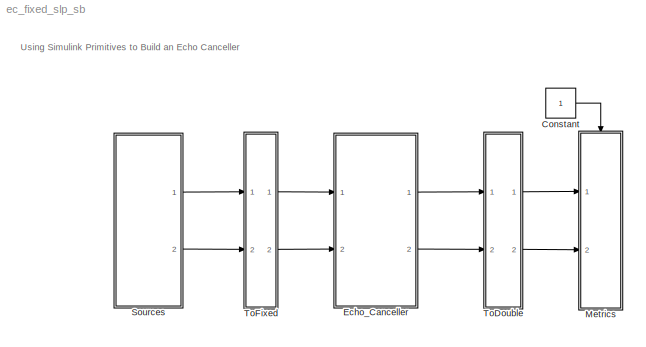
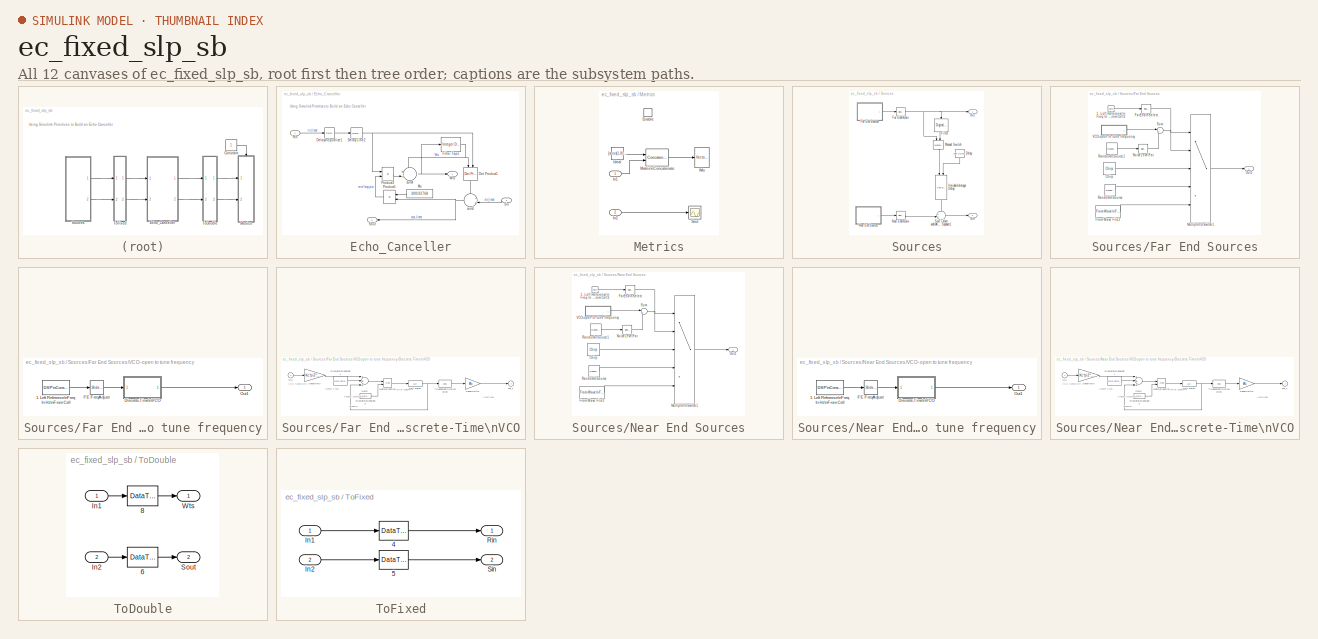
[diagram: thumbnail index - all 12 canvases of the model, root first then tree order]
MODEL ec_fixed_slp_sb
KIND model
CONFIG PreLoadFcn = ec_fixed_setup;
CONFIG StartFcn = tic;
CONFIG StopFcn = toc;
BLOCK [Constant] Constant
  SID = 1
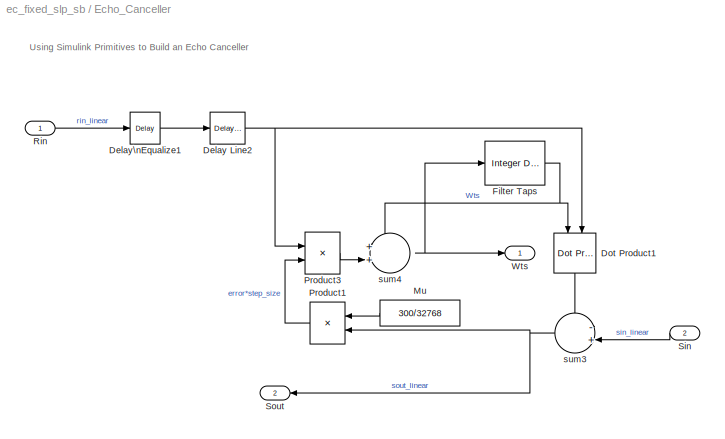
BLOCK [SubSystem] Echo_Canceller
  Ports = [2, 2]
  RequestExecContextInheritance = off
  SID = 2
BLOCK [Reference] Echo_Canceller/Delay Line2  REF=dspbuff3/Delay Line
  Ports = [1, 1]
  SID = 6
  SourceBlock = dspbuff3/Delay Line
  SourceProductBaseCode = DS
  SourceProductName = DSP System Toolbox
  SourceType = Delay Line
  directfeed = on
  ic = 0
  siz = ec_length
BLOCK [Reference] Echo_Canceller/Delay\nEqualize1  REF=dspsigops/Delay
  Ports = [1, 1]
  SID = 5
  SourceBlock = dspsigops/Delay
  SourceProductBaseCode = DS
  SourceProductName = DSP System Toolbox
  SourceType = Delay
  delay = spkr_to_mic_delay +sm_length/2 - ec_length/2
  dif_ic_for_ch = off
  dif_ic_for_dly = off
  dly_unit = Samples
  ic = 0
  ic_detail = off
  reset_popup = None
BLOCK [Reference] Echo_Canceller/Dot Product1  REF=simulink/Math\nOperations/Dot Product
  DoSatur = off
  InputSameDT = off
  LockScale = off
  OutDataType = fixdt(1,16,15)
  OutDataTypeStr = fixdt(1,16,15)
  OutScaling = []
  OutputDataTypeScalingMode = Specify via dialog
  Ports = [2, 1]
  RndMeth = Nearest
  SID = 7
  SourceBlock = simulink/Math\nOperations/Dot Product
  SourceProductBaseCode = SL
  SourceProductName = Simulink
  SourceType = Dot Product
BLOCK [Reference] Echo_Canceller/Filter Taps  REF=dspobslib/Integer Delay
  Ports = [1, 1]
  SID = 8
  SourceBlock = dspobslib/Integer Delay
  SourceProductBaseCode = DS
  SourceProductName = DSP System Toolbox
  SourceType = Integer Delay
  delay = ec_length
  ic = 0
  reset_popup = None
BLOCK [Constant] Echo_Canceller/Mu
  OutDataTypeStr = fixdt(1,16,15)
  SID = 9
  SampleTime = pic_frame_size/Fs
  Value = 300/32768
BLOCK [Product] Echo_Canceller/Product1
  InputSameDT = off
  OutDataTypeStr = fixdt(1,16,15)
  Ports = [2, 1]
  RndMeth = Nearest
  SID = 10
BLOCK [Product] Echo_Canceller/Product3
  InputSameDT = off
  OutDataTypeStr = fixdt(1,16,15)
  Ports = [2, 1]
  RndMeth = Nearest
  SID = 11
BLOCK [Inport] Echo_Canceller/Rin
  IconDisplay = Port number
  SID = 3
BLOCK [Inport] Echo_Canceller/Sin
  IconDisplay = Port number
  Port = 2
  SID = 4
BLOCK [Outport] Echo_Canceller/Sout
  IconDisplay = Port number
  Port = 2
  SID = 15
BLOCK [Outport] Echo_Canceller/Wts
  IconDisplay = Port number
  SID = 14
BLOCK [Sum] Echo_Canceller/sum3
  IconShape = round
  InputSameDT = off
  Inputs = -+|
  OutDataTypeStr = fixdt(1,16,14)
  Ports = [2, 1]
  RndMeth = Nearest
  SID = 12
BLOCK [Sum] Echo_Canceller/sum4
  IconShape = round
  InputSameDT = off
  Inputs = ++|
  OutDataTypeStr = fixdt(1,16,15)
  Ports = [2, 1]
  RndMeth = Nearest
  SID = 13
BLOCK [SubSystem] Metrics
  Ports = [2, 0, 1]
  RequestExecContextInheritance = off
  SID = 17
BLOCK [EnablePort] Metrics/Enable
  Ports = []
  SID = 20
BLOCK [Constant] Metrics/Ideal
  SID = 21
  Value = [zeros(1,8) spkr_to_mic_filter zeros(1,8)]
BLOCK [Inport] Metrics/In1
  IconDisplay = Port number
  SID = 18
BLOCK [Inport] Metrics/In2
  IconDisplay = Port number
  Port = 2
  SID = 19
BLOCK [Concatenate] Metrics/Matrix\nConcatenate
  ConcatenateDimension = 2
  Mode = Multidimensional array
  Ports = [2, 1]
  SID = 22
BLOCK [Scope] Metrics/Sout
  Floating = off
  NumInputPorts = 1
  Ports = [1]
  SID = 23
  ScopeSpecificationString = C++SS(StrPVP('Location','[620, 344, 964, 583]'),StrPVP('Open','off'),MxPVP('AxesTitles',54,'struct(''axes1'',''%<SignalLabel>'')'),StrPVP('TimeRange','10              '),StrPVP('YMin','-0.35'),StrPVP('YMax','0.35'),StrPVP('DataFormat','StructureWithTime'),StrPVP('BlockParamSampleTime','0'),StrPVP('LimitDataPoints','on'),StrPVP('Decimation','1'),StrPVP('BlockParamSampleInput','off'))
BLOCK [Reference] Metrics/Wts  REF=dspsnks4/Vector\nScope
  AxisGrid = on
  AxisLegend = off
  AxisProperties = off
  AxisZoom = off
  DisplayProperties = off
  Domain = Time
  FigPos = [616 915 341 237]
  FrameNumber = on
  HorizSpan = 1
  InheritXIncr = on
  LineColors = [1 0 0]|[0 1 0]
  LineProperties = off
  Memory = off
  OpenScopeAtSimStart = on
  OpenScopeImmediately = off
  Ports = [1]
  SID = 24
  ScopeProperties = on
  ShowPortLabels = off
  SourceBlock = dspsnks4/Vector\nScope
  SourceProductBaseCode = DS
  SourceProductName = DSP System Toolbox
  SourceType = Vector Scope
  XIncr = 1
  XLabel = Time
  XLimit = Auto
  XMax = 1
  XMin = 0
  XRange = [0...Fs/2]
  XStart = 0
  XUnits = Hertz
  YLabel = Amplitude
  YMax = 0.335546875
  YMin = -0.04794921875
  YUnits = dB
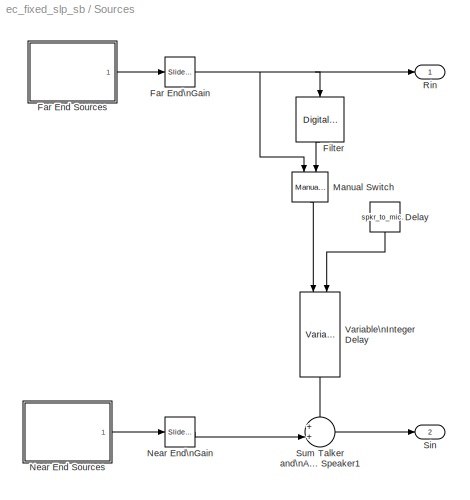
BLOCK [SubSystem] Sources
  AncestorBlock = ec_lib/Sources
  Ports = [0, 2]
  RequestExecContextInheritance = off
  SID = 25
BLOCK [Constant] Sources/Delay
  SID = 25:1
  SampleTime = 1/Fs
  Value = spkr_to_mic_delay
BLOCK [SubSystem] Sources/Far End Sources
  Ports = [0, 1]
  RequestExecContextInheritance = off
  SID = 25:3
BLOCK [Reference] Sources/Far End Sources/1. Left Reference\nFreq In Hz\nFrom Cell3  REF=dspsrcs4/DSP\nConstant
  FramebasedOutput = -inf
  FunctionWithSeparateData = off
  InterpretAs1D = -inf
  Ports = [0, 1]
  RTWMemSecDataConstants = Inherit from model
  RTWMemSecDataInternal = Inherit from model
  RTWMemSecDataParameters = Inherit from model
  RTWMemSecFuncExecute = Inherit from model
  RTWMemSecFuncInitTerm = Inherit from model
  SID = 25:4
  SampleMode = Discrete
  ShowPortLabels = FromPortIcon
  SourceBlock = dspsrcs4/DSP\nConstant
  SourceProductBaseCode = DS
  SourceProductName = DSP System Toolbox
  SourceType = DSP Constant
  SystemSampleTime = -1
  Ts = -inf
  Value = 1
  additionalParams = on
  allowOverrides = on
  continuousOutput = Sample-based
  dataType = double
  discreteOutput = Sample-based
  fracBitsMode = Best precision
  framePeriod = 2
  isSigned = on
  numFracBits = 15
  sampTime = 1/Fs
  udDataType = sfix(16)
  wordLen = 16
BLOCK [Reference] Sources/Far End Sources/Chirp  REF=dspsrcs4/Chirp
  Ports = [0, 1]
  SID = 25:5
  SourceBlock = dspsrcs4/Chirp
  SourceProductBaseCode = DS
  SourceProductName = DSP System Toolbox
  SourceType = Chirp
  Ts = 1/Fs
  Tsweep = pic_frame_size/Fs
  datatype = Double
  f0 = 100
  f1 = 4000
  mode = Unidirectional
  phase = 0
  spf = 1
  sweep = Linear
  t1 = pic_frame_size/Fs
BLOCK [Reference] Sources/Far End Sources/FarEnd\nSelect  REF=simulink/Math\nOperations/Slider\nGain
  FunctionWithSeparateData = off
  Ports = [1, 1]
  RTWMemSecDataConstants = Inherit from model
  RTWMemSecDataInternal = Inherit from model
  RTWMemSecDataParameters = Inherit from model
  RTWMemSecFuncExecute = Inherit from model
  RTWMemSecFuncInitTerm = Inherit from model
  SID = 25:6
  ShowPortLabels = FromPortIcon
  SourceBlock = simulink/Math\nOperations/Slider\nGain
  SourceProductBaseCode = SL
  SourceProductName = Simulink
  SourceType = Slider Gain
  SystemSampleTime = -1
  gain = 3
  high = 10
  low = 0
BLOCK [Reference] Sources/Far End Sources/From Wave File2  REF=dspwin32/From Wave\nFile
  FileName = far_end.wav
  MinBufSize = 80
  Ports = [0, 1]
  SID = 25:7
  SamplesPerFrame = 1
  SourceBlock = dspwin32/From Wave\nFile
  SourceProductBaseCode = DS
  SourceProductName = DSP System Toolbox
  SourceType = From Wave File
  bLoop = on
  dType = double
  firstSampleOutput = off
  lastSampleOutput = off
  restartMode = immediately after last sample
  timesToPlay = inf
BLOCK [MultiPortSwitch] Sources/Far End Sources/Multiport\nSwitch1
  InputSameDT = off
  Inputs = 4
  Ports = [5, 1]
  SID = 25:8
  SampleTime = 1/Fs
  SaturateOnIntegerOverflow = off
BLOCK [Reference] Sources/Far End Sources/NoiseLevelFar  REF=simulink/Math\nOperations/Slider\nGain
  FunctionWithSeparateData = off
  Ports = [1, 1]
  RTWMemSecDataConstants = Inherit from model
  RTWMemSecDataInternal = Inherit from model
  RTWMemSecDataParameters = Inherit from model
  RTWMemSecFuncExecute = Inherit from model
  RTWMemSecFuncInitTerm = Inherit from model
  SID = 25:9
  ShowPortLabels = FromPortIcon
  SourceBlock = simulink/Math\nOperations/Slider\nGain
  SourceProductBaseCode = SL
  SourceProductName = Simulink
  SourceType = Slider Gain
  SystemSampleTime = -1
  gain = 0.01
  high = 1
  low = 0
BLOCK [Outport] Sources/Far End Sources/Out1
  IconDisplay = Port number
  SID = 25:33
BLOCK [Reference] Sources/Far End Sources/Random\nSource  REF=dspsrcs4/Random\nSource
  CltLength = 12
  DataType = Double
  IsInherit = off
  MaxVal = 1
  MeanVal = 0
  MinVal = 0
  NormMethod = Ziggurat
  OutComplex = Real
  Ports = [0, 1]
  RepMode = Repeatable
  SID = 25:10
  SampFrame = 1
  SampMode = Discrete
  SampTime = 1/Fs
  SourceBlock = dspsrcs4/Random\nSource
  SourceProductBaseCode = DS
  SourceProductName = DSP System Toolbox
  SourceType = Random Source
  SrcType = Gaussian
  UserData = DataTag0
  UserDataPersistent = on
  VarVal = 1
  rawSeed = 1
BLOCK [Reference] Sources/Far End Sources/Random\nSource1  REF=dspsrcs4/Random\nSource
  CltLength = 12
  DataType = Double
  IsInherit = off
  MaxVal = 1
  MeanVal = 0
  MinVal = 0
  NormMethod = Ziggurat
  OutComplex = Real
  Ports = [0, 1]
  RepMode = Not repeatable
  SID = 25:11
  SampFrame = 1
  SampMode = Discrete
  SampTime = 1/Fs
  SourceBlock = dspsrcs4/Random\nSource
  SourceProductBaseCode = DS
  SourceProductName = DSP System Toolbox
  SourceType = Random Source
  SrcType = Gaussian
  UserData = DataTag1
  UserDataPersistent = on
  VarVal = 1
  rawSeed = 1
BLOCK [Sum] Sources/Far End Sources/Sum
  IconShape = round
  InputSameDT = off
  Inputs = |++
  OutDataTypeStr = Inherit: Inherit via internal rule
  Ports = [2, 1]
  SID = 25:12
  SaturateOnIntegerOverflow = off
BLOCK [SubSystem] Sources/Far End Sources/VCO-open to tune frequency
  Ports = [0, 1]
  RequestExecContextInheritance = off
  SID = 25:13
BLOCK [Reference] Sources/Far End Sources/VCO-open to tune frequency/1. Left Reference\nFreq In Hz\nFrom Cell  REF=dspsrcs4/DSP\nConstant
  FramebasedOutput = -inf
  FunctionWithSeparateData = off
  InterpretAs1D = -inf
  Ports = [0, 1]
  RTWMemSecDataConstants = Inherit from model
  RTWMemSecDataInternal = Inherit from model
  RTWMemSecDataParameters = Inherit from model
  RTWMemSecFuncExecute = Inherit from model
  RTWMemSecFuncInitTerm = Inherit from model
  SID = 25:14
  SampleMode = Discrete
  ShowPortLabels = FromPortIcon
  SourceBlock = dspsrcs4/DSP\nConstant
  SourceProductBaseCode = DS
  SourceProductName = DSP System Toolbox
  SourceType = DSP Constant
  SystemSampleTime = -1
  Ts = -inf
  Value = 1000
  additionalParams = on
  allowOverrides = on
  continuousOutput = Sample-based
  dataType = double
  discreteOutput = Sample-based
  fracBitsMode = Best precision
  framePeriod = 2
  isSigned = on
  numFracBits = 15
  sampTime = 1/Fs
  udDataType = sfix(16)
  wordLen = 16
BLOCK [SubSystem] Sources/Far End Sources/VCO-open to tune frequency/Discrete-Time\nVCO
  Ports = [1, 1]
  RequestExecContextInheritance = off
  SID = 25:15
BLOCK [Reference] Sources/Far End Sources/VCO-open to tune frequency/Discrete-Time\nVCO/Discrete\nConstant1  REF=dspsrcs4/DSP\nConstant
  FramebasedOutput = off
  FunctionWithSeparateData = off
  InterpretAs1D = on
  Ports = [0, 1]
  RTWMemSecDataConstants = Inherit from model
  RTWMemSecDataInternal = Inherit from model
  RTWMemSecDataParameters = Inherit from model
  RTWMemSecFuncExecute = Inherit from model
  RTWMemSecFuncInitTerm = Inherit from model
  SID = 25:17
  SampleMode = Discrete
  ShowPortLabels = FromPortIcon
  SourceBlock = dspsrcs4/DSP\nConstant
  SourceProductBaseCode = DS
  SourceProductName = DSP System Toolbox
  SourceType = DSP Constant
  SystemSampleTime = -1
  Ts = 1/8000
  Value = Fc*pi2*ts
  additionalParams = on
  allowOverrides = on
  continuousOutput = Sample-based
  dataType = Inherit via back propagation
  discreteOutput = Sample-based (interpret vectors as 1-D)
  fracBitsMode = Best precision
  framePeriod = 1/8000
  isSigned = on
  numFracBits = 15
  sampTime = 1/8000
  udDataType = sfix(16)
  wordLen = 16
BLOCK [Reference] Sources/Far End Sources/VCO-open to tune frequency/Discrete-Time\nVCO/Discrete\nConstant2  REF=dspsrcs4/DSP\nConstant
  FramebasedOutput = off
  FunctionWithSeparateData = off
  InterpretAs1D = on
  Ports = [0, 1]
  RTWMemSecDataConstants = Inherit from model
  RTWMemSecDataInternal = Inherit from model
  RTWMemSecDataParameters = Inherit from model
  RTWMemSecFuncExecute = Inherit from model
  RTWMemSecFuncInitTerm = Inherit from model
  SID = 25:18
  SampleMode = Discrete
  ShowPortLabels = FromPortIcon
  SourceBlock = dspsrcs4/DSP\nConstant
  SourceProductBaseCode = DS
  SourceProductName = DSP System Toolbox
  SourceType = DSP Constant
  SystemSampleTime = -1
  Ts = 1/8000
  Value = pi2
  additionalParams = on
  allowOverrides = on
  continuousOutput = Sample-based
  dataType = Inherit via back propagation
  discreteOutput = Sample-based (interpret vectors as 1-D)
  fracBitsMode = Best precision
  framePeriod = 1/8000
  isSigned = on
  numFracBits = 15
  sampTime = 1/8000
  udDataType = sfix(16)
  wordLen = 16
BLOCK [Math] Sources/Far End Sources/VCO-open to tune frequency/Discrete-Time\nVCO/Math\nFunction
  Operator = mod
  Ports = [2, 1]
  SID = 25:19
BLOCK [Gain] Sources/Far End Sources/VCO-open to tune frequency/Discrete-Time\nVCO/Sensitivity
  Gain = Kc*pi2*ts
  SID = 25:20
BLOCK [Gain] Sources/Far End Sources/VCO-open to tune frequency/Discrete-Time\nVCO/Sensitivity2
  Gain = Ac
  SID = 25:21
BLOCK [Sum] Sources/Far End Sources/VCO-open to tune frequency/Discrete-Time\nVCO/Sum1
  Inputs = +++
  Ports = [3, 1]
  SID = 25:22
BLOCK [Trigonometry] Sources/Far End Sources/VCO-open to tune frequency/Discrete-Time\nVCO/Trigonometric\nFunction
  Operator = cos
  Ports = [1, 1]
  SID = 25:23
BLOCK [UnitDelay] Sources/Far End Sources/VCO-open to tune frequency/Discrete-Time\nVCO/Unit Delay
  InitialCondition = Ph
  SID = 25:24
  SampleTime = ts
BLOCK [Inport] Sources/Far End Sources/VCO-open to tune frequency/Discrete-Time\nVCO/in_1
  IconDisplay = Port number
  SID = 25:16
BLOCK [Outport] Sources/Far End Sources/VCO-open to tune frequency/Discrete-Time\nVCO/out_1
  IconDisplay = Port number
  InitialOutput = 0
  SID = 25:25
BLOCK [Reference] Sources/Far End Sources/VCO-open to tune frequency/FE FreqAdjust  REF=simulink/Math\nOperations/Slider\nGain
  FunctionWithSeparateData = off
  Ports = [1, 1]
  RTWMemSecDataConstants = Inherit from model
  RTWMemSecDataInternal = Inherit from model
  RTWMemSecDataParameters = Inherit from model
  RTWMemSecFuncExecute = Inherit from model
  RTWMemSecFuncInitTerm = Inherit from model
  SID = 25:31
  ShowPortLabels = FromPortIcon
  SourceBlock = simulink/Math\nOperations/Slider\nGain
  SourceProductBaseCode = SL
  SourceProductName = Simulink
  SourceType = Slider Gain
  SystemSampleTime = -1
  gain = 1.1
  high = 5
  low = 0
BLOCK [Outport] Sources/Far End Sources/VCO-open to tune frequency/Out1
  IconDisplay = Port number
  SID = 25:32
BLOCK [Reference] Sources/Far End\nGain  REF=simulink/Math\nOperations/Slider\nGain
  FunctionWithSeparateData = off
  Ports = [1, 1]
  RTWMemSecDataConstants = Inherit from model
  RTWMemSecDataInternal = Inherit from model
  RTWMemSecDataParameters = Inherit from model
  RTWMemSecFuncExecute = Inherit from model
  RTWMemSecFuncInitTerm = Inherit from model
  SID = 25:2
  ShowPortLabels = FromPortIcon
  SourceBlock = simulink/Math\nOperations/Slider\nGain
  SourceProductBaseCode = SL
  SourceProductName = Simulink
  SourceType = Slider Gain
  SystemSampleTime = -1
  gain = 0.2
  high = 10
  low = 0
BLOCK [Reference] Sources/Filter  REF=dsparch4/Digital Filter
  AllPoleFiltStruct = Direct form
  BiQuadCoeffs = [1 0.3 0.4 1 0.1 0.2]
  CoeffSource = Specify via dialog
  DenCoeffs = [1 0.1]
  FIRFiltStruct = Direct form
  FiltPerSampPopup = One filter per frame
  FilterSource = Specify via dialog
  IC = 0
  ICden = 0
  ICnum = 0
  IIRFiltStruct = Direct form II transposed
  LatticeCoeffs = [0.2 0.4]
  LockScale = off
  NumCoeffs = spkr_to_mic_filter
  Ports = [1, 1]
  SID = 25:34
  ScaleValues = 1
  SourceBlock = dsparch4/Digital Filter
  SourceProductBaseCode = DS
  SourceProductName = DSP System Toolbox
  SourceType = Digital Filter
  Tag = BlockMethodSubSystem
  TypePopup = FIR (all zeros)
  accumFracLength = 30
  accumMode = Same as product output
  accumWordLength = 32
  additionalParams = off
  allowOverrides = on
  denIgnore = on
  dfiltObjectName = dfilt.dffir([1 2 1])
  firstCoeffFracLength = 15
  firstCoeffMode = Same word length as input
  firstCoeffWordLength = 16
  memoryFracLength = 15
  memoryMode = Same as accumulator
  memoryWordLength = 16
  multiplicandFracLength = 30
  multiplicandMode = Same as output
  multiplicandWordLength = 32
  outputFracLength = 15
  outputMode = Same as accumulator
  outputWordLength = 16
  overflowMode = off
  prodOutputFracLength = 30
  prodOutputMode = Same as input
  prodOutputWordLength = 32
  roundingMode = Floor
  scaleValueFracLength = 14
  secondCoeffFracLength = 15
  secondCoeffMode = Same as numerator
  secondCoeffWordLength = 16
  showAcc = off
  showCoeff = off
  showMem = off
  showMpy = off
  showOut = off
  stageIOMode = Same as input
  stageIOWordLength = 16
  stageInFracLength = 15
  stageOutFracLength = 15
  tapSumFracLength = 30
  tapSumMode = Same as input
  tapSumWordLength = 32
  thirdCoeffFracLength = 15
  thirdCoeffMode = Same as input
  thirdCoeffWordLength = 16
BLOCK [Reference] Sources/Manual Switch  REF=simulink/Signal\nRouting/Manual Switch
  FunctionWithSeparateData = off
  Ports = [2, 1]
  RTWMemSecDataConstants = Inherit from model
  RTWMemSecDataInternal = Inherit from model
  RTWMemSecDataParameters = Inherit from model
  RTWMemSecFuncExecute = Inherit from model
  RTWMemSecFuncInitTerm = Inherit from model
  SID = 25:35
  ShowPortLabels = FromPortIcon
  SourceBlock = simulink/Signal\nRouting/Manual Switch
  SourceProductBaseCode = SL
  SourceProductName = Simulink
  SourceType = Manual Switch
  SystemSampleTime = -1
  action = 0
  sw = 0
  varsize = off
BLOCK [SubSystem] Sources/Near End Sources
  Ports = [0, 1]
  RequestExecContextInheritance = off
  SID = 25:37
BLOCK [Reference] Sources/Near End Sources/1. Left Reference\nFreq In Hz\nFrom Cell3  REF=dspsrcs4/DSP\nConstant
  FramebasedOutput = -inf
  FunctionWithSeparateData = off
  InterpretAs1D = -inf
  Ports = [0, 1]
  RTWMemSecDataConstants = Inherit from model
  RTWMemSecDataInternal = Inherit from model
  RTWMemSecDataParameters = Inherit from model
  RTWMemSecFuncExecute = Inherit from model
  RTWMemSecFuncInitTerm = Inherit from model
  SID = 25:38
  SampleMode = Discrete
  ShowPortLabels = FromPortIcon
  SourceBlock = dspsrcs4/DSP\nConstant
  SourceProductBaseCode = DS
  SourceProductName = DSP System Toolbox
  SourceType = DSP Constant
  SystemSampleTime = -1
  Ts = -inf
  Value = 1
  additionalParams = on
  allowOverrides = on
  continuousOutput = Sample-based
  dataType = double
  discreteOutput = Sample-based
  fracBitsMode = Best precision
  framePeriod = 2
  isSigned = on
  numFracBits = 15
  sampTime = 1/Fs
  udDataType = sfix(16)
  wordLen = 16
BLOCK [Reference] Sources/Near End Sources/Chirp  REF=dspsrcs4/Chirp
  Ports = [0, 1]
  SID = 25:39
  SourceBlock = dspsrcs4/Chirp
  SourceProductBaseCode = DS
  SourceProductName = DSP System Toolbox
  SourceType = Chirp
  Ts = 1/Fs
  Tsweep = pic_frame_size/Fs
  datatype = Double
  f0 = 100
  f1 = 4000
  mode = Unidirectional
  phase = 0
  spf = 1
  sweep = Linear
  t1 = pic_frame_size/Fs
BLOCK [Reference] Sources/Near End Sources/FarEnd\nSelect  REF=simulink/Math\nOperations/Slider\nGain
  FunctionWithSeparateData = off
  Ports = [1, 1]
  RTWMemSecDataConstants = Inherit from model
  RTWMemSecDataInternal = Inherit from model
  RTWMemSecDataParameters = Inherit from model
  RTWMemSecFuncExecute = Inherit from model
  RTWMemSecFuncInitTerm = Inherit from model
  SID = 25:40
  ShowPortLabels = FromPortIcon
  SourceBlock = simulink/Math\nOperations/Slider\nGain
  SourceProductBaseCode = SL
  SourceProductName = Simulink
  SourceType = Slider Gain
  SystemSampleTime = -1
  gain = 3
  high = 10
  low = 0
BLOCK [Reference] Sources/Near End Sources/From Wave File2  REF=dspwin32/From Wave\nFile
  FileName = far_end.wav
  MinBufSize = 80
  Ports = [0, 1]
  SID = 25:41
  SamplesPerFrame = 1
  SourceBlock = dspwin32/From Wave\nFile
  SourceProductBaseCode = DS
  SourceProductName = DSP System Toolbox
  SourceType = From Wave File
  bLoop = on
  dType = double
  firstSampleOutput = off
  lastSampleOutput = off
  restartMode = immediately after last sample
  timesToPlay = inf
BLOCK [MultiPortSwitch] Sources/Near End Sources/Multiport\nSwitch1
  InputSameDT = off
  Inputs = 4
  Ports = [5, 1]
  SID = 25:42
  SampleTime = 1/Fs
  SaturateOnIntegerOverflow = off
BLOCK [Reference] Sources/Near End Sources/NoiseLevelFar  REF=simulink/Math\nOperations/Slider\nGain
  FunctionWithSeparateData = off
  Ports = [1, 1]
  RTWMemSecDataConstants = Inherit from model
  RTWMemSecDataInternal = Inherit from model
  RTWMemSecDataParameters = Inherit from model
  RTWMemSecFuncExecute = Inherit from model
  RTWMemSecFuncInitTerm = Inherit from model
  SID = 25:43
  ShowPortLabels = FromPortIcon
  SourceBlock = simulink/Math\nOperations/Slider\nGain
  SourceProductBaseCode = SL
  SourceProductName = Simulink
  SourceType = Slider Gain
  SystemSampleTime = -1
  gain = 0.01
  high = 1
  low = 0
BLOCK [Outport] Sources/Near End Sources/Out1
  IconDisplay = Port number
  SID = 25:67
BLOCK [Reference] Sources/Near End Sources/Random\nSource  REF=dspsrcs4/Random\nSource
  CltLength = 12
  DataType = Double
  IsInherit = off
  MaxVal = 1
  MeanVal = 0
  MinVal = 0
  NormMethod = Ziggurat
  OutComplex = Real
  Ports = [0, 1]
  RepMode = Repeatable
  SID = 25:44
  SampFrame = 1
  SampMode = Discrete
  SampTime = 1/Fs
  SourceBlock = dspsrcs4/Random\nSource
  SourceProductBaseCode = DS
  SourceProductName = DSP System Toolbox
  SourceType = Random Source
  SrcType = Gaussian
  UserData = DataTag2
  UserDataPersistent = on
  VarVal = 1
  rawSeed = 1
BLOCK [Reference] Sources/Near End Sources/Random\nSource1  REF=dspsrcs4/Random\nSource
  CltLength = 12
  DataType = Double
  IsInherit = off
  MaxVal = 1
  MeanVal = 0
  MinVal = 0
  NormMethod = Ziggurat
  OutComplex = Real
  Ports = [0, 1]
  RepMode = Not repeatable
  SID = 25:45
  SampFrame = 1
  SampMode = Discrete
  SampTime = 1/Fs
  SourceBlock = dspsrcs4/Random\nSource
  SourceProductBaseCode = DS
  SourceProductName = DSP System Toolbox
  SourceType = Random Source
  SrcType = Gaussian
  UserData = DataTag3
  UserDataPersistent = on
  VarVal = 1
  rawSeed = 1
BLOCK [Sum] Sources/Near End Sources/Sum
  IconShape = round
  InputSameDT = off
  Inputs = |++
  OutDataTypeStr = Inherit: Inherit via internal rule
  Ports = [2, 1]
  SID = 25:46
  SaturateOnIntegerOverflow = off
BLOCK [SubSystem] Sources/Near End Sources/VCO-open to tune frequency
  Ports = [0, 1]
  RequestExecContextInheritance = off
  SID = 25:47
BLOCK [Reference] Sources/Near End Sources/VCO-open to tune frequency/1. Left Reference\nFreq In Hz\nFrom Cell  REF=dspsrcs4/DSP\nConstant
  FramebasedOutput = -inf
  FunctionWithSeparateData = off
  InterpretAs1D = -inf
  Ports = [0, 1]
  RTWMemSecDataConstants = Inherit from model
  RTWMemSecDataInternal = Inherit from model
  RTWMemSecDataParameters = Inherit from model
  RTWMemSecFuncExecute = Inherit from model
  RTWMemSecFuncInitTerm = Inherit from model
  SID = 25:48
  SampleMode = Discrete
  ShowPortLabels = FromPortIcon
  SourceBlock = dspsrcs4/DSP\nConstant
  SourceProductBaseCode = DS
  SourceProductName = DSP System Toolbox
  SourceType = DSP Constant
  SystemSampleTime = -1
  Ts = -inf
  Value = 1000
  additionalParams = on
  allowOverrides = on
  continuousOutput = Sample-based
  dataType = double
  discreteOutput = Sample-based
  fracBitsMode = Best precision
  framePeriod = 2
  isSigned = on
  numFracBits = 15
  sampTime = 1/Fs
  udDataType = sfix(16)
  wordLen = 16
BLOCK [SubSystem] Sources/Near End Sources/VCO-open to tune frequency/Discrete-Time\nVCO
  Ports = [1, 1]
  RequestExecContextInheritance = off
  SID = 25:49
BLOCK [Reference] Sources/Near End Sources/VCO-open to tune frequency/Discrete-Time\nVCO/Discrete\nConstant1  REF=dspsrcs4/DSP\nConstant
  FramebasedOutput = off
  FunctionWithSeparateData = off
  InterpretAs1D = on
  Ports = [0, 1]
  RTWMemSecDataConstants = Inherit from model
  RTWMemSecDataInternal = Inherit from model
  RTWMemSecDataParameters = Inherit from model
  RTWMemSecFuncExecute = Inherit from model
  RTWMemSecFuncInitTerm = Inherit from model
  SID = 25:51
  SampleMode = Discrete
  ShowPortLabels = FromPortIcon
  SourceBlock = dspsrcs4/DSP\nConstant
  SourceProductBaseCode = DS
  SourceProductName = DSP System Toolbox
  SourceType = DSP Constant
  SystemSampleTime = -1
  Ts = 1/8000
  Value = Fc*pi2*ts
  additionalParams = on
  allowOverrides = on
  continuousOutput = Sample-based
  dataType = Inherit via back propagation
  discreteOutput = Sample-based (interpret vectors as 1-D)
  fracBitsMode = Best precision
  framePeriod = 1/8000
  isSigned = on
  numFracBits = 15
  sampTime = 1/8000
  udDataType = sfix(16)
  wordLen = 16
BLOCK [Reference] Sources/Near End Sources/VCO-open to tune frequency/Discrete-Time\nVCO/Discrete\nConstant2  REF=dspsrcs4/DSP\nConstant
  FramebasedOutput = off
  FunctionWithSeparateData = off
  InterpretAs1D = on
  Ports = [0, 1]
  RTWMemSecDataConstants = Inherit from model
  RTWMemSecDataInternal = Inherit from model
  RTWMemSecDataParameters = Inherit from model
  RTWMemSecFuncExecute = Inherit from model
  RTWMemSecFuncInitTerm = Inherit from model
  SID = 25:52
  SampleMode = Discrete
  ShowPortLabels = FromPortIcon
  SourceBlock = dspsrcs4/DSP\nConstant
  SourceProductBaseCode = DS
  SourceProductName = DSP System Toolbox
  SourceType = DSP Constant
  SystemSampleTime = -1
  Ts = 1/8000
  Value = pi2
  additionalParams = on
  allowOverrides = on
  continuousOutput = Sample-based
  dataType = Inherit via back propagation
  discreteOutput = Sample-based (interpret vectors as 1-D)
  fracBitsMode = Best precision
  framePeriod = 1/8000
  isSigned = on
  numFracBits = 15
  sampTime = 1/8000
  udDataType = sfix(16)
  wordLen = 16
BLOCK [Math] Sources/Near End Sources/VCO-open to tune frequency/Discrete-Time\nVCO/Math\nFunction
  Operator = mod
  Ports = [2, 1]
  SID = 25:53
BLOCK [Gain] Sources/Near End Sources/VCO-open to tune frequency/Discrete-Time\nVCO/Sensitivity
  Gain = Kc*pi2*ts
  SID = 25:54
BLOCK [Gain] Sources/Near End Sources/VCO-open to tune frequency/Discrete-Time\nVCO/Sensitivity2
  Gain = Ac
  SID = 25:55
BLOCK [Sum] Sources/Near End Sources/VCO-open to tune frequency/Discrete-Time\nVCO/Sum1
  Inputs = +++
  Ports = [3, 1]
  SID = 25:56
BLOCK [Trigonometry] Sources/Near End Sources/VCO-open to tune frequency/Discrete-Time\nVCO/Trigonometric\nFunction
  Operator = cos
  Ports = [1, 1]
  SID = 25:57
BLOCK [UnitDelay] Sources/Near End Sources/VCO-open to tune frequency/Discrete-Time\nVCO/Unit Delay
  InitialCondition = Ph
  SID = 25:58
  SampleTime = ts
BLOCK [Inport] Sources/Near End Sources/VCO-open to tune frequency/Discrete-Time\nVCO/in_1
  IconDisplay = Port number
  SID = 25:50
BLOCK [Outport] Sources/Near End Sources/VCO-open to tune frequency/Discrete-Time\nVCO/out_1
  IconDisplay = Port number
  InitialOutput = 0
  SID = 25:59
BLOCK [Reference] Sources/Near End Sources/VCO-open to tune frequency/FE FreqAdjust  REF=simulink/Math\nOperations/Slider\nGain
  FunctionWithSeparateData = off
  Ports = [1, 1]
  RTWMemSecDataConstants = Inherit from model
  RTWMemSecDataInternal = Inherit from model
  RTWMemSecDataParameters = Inherit from model
  RTWMemSecFuncExecute = Inherit from model
  RTWMemSecFuncInitTerm = Inherit from model
  SID = 25:65
  ShowPortLabels = FromPortIcon
  SourceBlock = simulink/Math\nOperations/Slider\nGain
  SourceProductBaseCode = SL
  SourceProductName = Simulink
  SourceType = Slider Gain
  SystemSampleTime = -1
  gain = 1.1
  high = 5
  low = 0
BLOCK [Outport] Sources/Near End Sources/VCO-open to tune frequency/Out1
  IconDisplay = Port number
  SID = 25:66
BLOCK [Reference] Sources/Near End\nGain  REF=simulink/Math\nOperations/Slider\nGain
  FunctionWithSeparateData = off
  Ports = [1, 1]
  RTWMemSecDataConstants = Inherit from model
  RTWMemSecDataInternal = Inherit from model
  RTWMemSecDataParameters = Inherit from model
  RTWMemSecFuncExecute = Inherit from model
  RTWMemSecFuncInitTerm = Inherit from model
  SID = 25:36
  ShowPortLabels = FromPortIcon
  SourceBlock = simulink/Math\nOperations/Slider\nGain
  SourceProductBaseCode = SL
  SourceProductName = Simulink
  SourceType = Slider Gain
  SystemSampleTime = -1
  gain = 0
  high = 10
  low = 0
BLOCK [Outport] Sources/Rin
  IconDisplay = Port number
  SID = 25:70
BLOCK [Outport] Sources/Sin
  IconDisplay = Port number
  Port = 2
  SID = 25:71
BLOCK [Sum] Sources/Sum Talker and\nAudio From Speaker1
  IconShape = round
  Inputs = ++|
  Ports = [2, 1]
  SID = 25:68
BLOCK [Reference] Sources/Variable\nInteger Delay  REF=dspsigops/Variable\nInteger Delay
  Ports = [2, 1]
  SID = 25:69
  SourceBlock = dspsigops/Variable\nInteger Delay
  SourceProductBaseCode = DS
  SourceProductName = DSP System Toolbox
  SourceType = Variable Integer Delay
  dmax = 100
  ic = 0
BLOCK [SubSystem] ToDouble
  Ports = [2, 2]
  RequestExecContextInheritance = off
  SID = 26
BLOCK [DataTypeConversion] ToDouble/ 6
  OutDataTypeStr = double
  RndMeth = Floor
  SID = 29
  SaturateOnIntegerOverflow = off
BLOCK [DataTypeConversion] ToDouble/ 8
  OutDataTypeStr = double
  RndMeth = Floor
  SID = 30
  SaturateOnIntegerOverflow = off
BLOCK [Inport] ToDouble/In1
  IconDisplay = Port number
  SID = 27
BLOCK [Inport] ToDouble/In2
  IconDisplay = Port number
  Port = 2
  SID = 28
BLOCK [Outport] ToDouble/Sout
  IconDisplay = Port number
  Port = 2
  SID = 32
BLOCK [Outport] ToDouble/Wts
  IconDisplay = Port number
  SID = 31
BLOCK [SubSystem] ToFixed
  Ports = [2, 2]
  RequestExecContextInheritance = off
  SID = 33
BLOCK [DataTypeConversion] ToFixed/ 4
  OutDataTypeStr = fixdt(1,16,14)
  RndMeth = Floor
  SID = 36
  SaturateOnIntegerOverflow = off
BLOCK [DataTypeConversion] ToFixed/ 5
  OutDataTypeStr = fixdt(1,16,14)
  RndMeth = Floor
  SID = 37
  SaturateOnIntegerOverflow = off
BLOCK [Inport] ToFixed/ In2
  IconDisplay = Port number
  Port = 2
  SID = 35
BLOCK [Inport] ToFixed/In1
  IconDisplay = Port number
  SID = 34
BLOCK [Outport] ToFixed/Rin
  IconDisplay = Port number
  SID = 38
BLOCK [Outport] ToFixed/Sin
  IconDisplay = Port number
  Port = 2
  SID = 39
ANNOTATION (root): Using Simulink Primitives to Build an Echo Canceller
ANNOTATION Echo_Canceller: Using Simulink Primitives to Build an Echo Canceller
ANNOTATION Sources/Far End Sources/VCO-open to tune frequency/Discrete-Time\nVCO: Amplitude
ANNOTATION Sources/Far End Sources/VCO-open to tune frequency/Discrete-Time\nVCO: Center Freq
ANNOTATION Sources/Far End Sources/VCO-open to tune frequency/Discrete-Time\nVCO: Phase Accumulator\nModulus
ANNOTATION Sources/Far End Sources/VCO-open to tune frequency/Discrete-Time\nVCO: VCO Sensitivity
ANNOTATION Sources/Far End Sources/VCO-open to tune frequency/Discrete-Time\nVCO: initial condx=Ph
ANNOTATION Sources/Near End Sources/VCO-open to tune frequency/Discrete-Time\nVCO: Amplitude
ANNOTATION Sources/Near End Sources/VCO-open to tune frequency/Discrete-Time\nVCO: Center Freq
ANNOTATION Sources/Near End Sources/VCO-open to tune frequency/Discrete-Time\nVCO: Phase Accumulator\nModulus
ANNOTATION Sources/Near End Sources/VCO-open to tune frequency/Discrete-Time\nVCO: VCO Sensitivity
ANNOTATION Sources/Near End Sources/VCO-open to tune frequency/Discrete-Time\nVCO: initial condx=Ph
LINE Constant:1 -> Metrics:enable
NET Echo_Canceller/Delay Line2:1 -> Echo_Canceller/Dot Product1:2, Echo_Canceller/Product3:1
LINE Echo_Canceller/Delay\nEqualize1:1 -> Echo_Canceller/Delay Line2:1
LINE Echo_Canceller/Dot Product1:1 -> Echo_Canceller/sum3:1
NET Echo_Canceller/Filter Taps:1 -> Echo_Canceller/Dot Product1:1, Echo_Canceller/sum4:1
LINE Echo_Canceller/Mu:1 -> Echo_Canceller/Product1:1
LINE Echo_Canceller/Product1:1 -> Echo_Canceller/Product3:2
LINE Echo_Canceller/Product3:1 -> Echo_Canceller/sum4:2
LINE Echo_Canceller/Rin:1 -> Echo_Canceller/Delay\nEqualize1:1
LINE Echo_Canceller/Sin:1 -> Echo_Canceller/sum3:2
NET Echo_Canceller/sum3:1 -> Echo_Canceller/Product1:2, Echo_Canceller/Sout:1
NET Echo_Canceller/sum4:1 -> Echo_Canceller/Filter Taps:1, Echo_Canceller/Wts:1
LINE Echo_Canceller:1 -> ToDouble:1
LINE Echo_Canceller:2 -> ToDouble:2
LINE Metrics/Ideal:1 -> Metrics/Matrix\nConcatenate:1
LINE Metrics/In1:1 -> Metrics/Matrix\nConcatenate:2
LINE Metrics/In2:1 -> Metrics/Sout:1
LINE Metrics/Matrix\nConcatenate:1 -> Metrics/Wts:1
LINE Sources/Delay:1 -> Sources/Variable\nInteger Delay:2
LINE Sources/Far End Sources/1. Left Reference\nFreq In Hz\nFrom Cell3:1 -> Sources/Far End Sources/FarEnd\nSelect:1
LINE Sources/Far End Sources/Chirp:1 -> Sources/Far End Sources/Multiport\nSwitch1:3
LINE Sources/Far End Sources/FarEnd\nSelect:1 -> Sources/Far End Sources/Multiport\nSwitch1:1
LINE Sources/Far End Sources/From Wave File2:1 -> Sources/Far End Sources/Multiport\nSwitch1:5
LINE Sources/Far End Sources/Multiport\nSwitch1:1 -> Sources/Far End Sources/Out1:1
LINE Sources/Far End Sources/NoiseLevelFar:1 -> Sources/Far End Sources/Sum:2
LINE Sources/Far End Sources/Random\nSource1:1 -> Sources/Far End Sources/NoiseLevelFar:1
LINE Sources/Far End Sources/Random\nSource:1 -> Sources/Far End Sources/Multiport\nSwitch1:4
LINE Sources/Far End Sources/Sum:1 -> Sources/Far End Sources/Multiport\nSwitch1:2
LINE Sources/Far End Sources/VCO-open to tune frequency/1. Left Reference\nFreq In Hz\nFrom Cell:1 -> Sources/Far End Sources/VCO-open to tune frequency/FE FreqAdjust:1
LINE Sources/Far End Sources/VCO-open to tune frequency/Discrete-Time\nVCO/Discrete\nConstant1:1 -> Sources/Far End Sources/VCO-open to tune frequency/Discrete-Time\nVCO/Sum1:2
LINE Sources/Far End Sources/VCO-open to tune frequency/Discrete-Time\nVCO/Discrete\nConstant2:1 -> Sources/Far End Sources/VCO-open to tune frequency/Discrete-Time\nVCO/Math\nFunction:2
LINE Sources/Far End Sources/VCO-open to tune frequency/Discrete-Time\nVCO/Math\nFunction:1 -> Sources/Far End Sources/VCO-open to tune frequency/Discrete-Time\nVCO/Unit Delay:1
LINE Sources/Far End Sources/VCO-open to tune frequency/Discrete-Time\nVCO/Sensitivity2:1 -> Sources/Far End Sources/VCO-open to tune frequency/Discrete-Time\nVCO/out_1:1
LINE Sources/Far End Sources/VCO-open to tune frequency/Discrete-Time\nVCO/Sensitivity:1 -> Sources/Far End Sources/VCO-open to tune frequency/Discrete-Time\nVCO/Sum1:1
LINE Sources/Far End Sources/VCO-open to tune frequency/Discrete-Time\nVCO/Sum1:1 -> Sources/Far End Sources/VCO-open to tune frequency/Discrete-Time\nVCO/Math\nFunction:1
LINE Sources/Far End Sources/VCO-open to tune frequency/Discrete-Time\nVCO/Trigonometric\nFunction:1 -> Sources/Far End Sources/VCO-open to tune frequency/Discrete-Time\nVCO/Sensitivity2:1
NET Sources/Far End Sources/VCO-open to tune frequency/Discrete-Time\nVCO/Unit Delay:1 -> Sources/Far End Sources/VCO-open to tune frequency/Discrete-Time\nVCO/Sum1:3, Sources/Far End Sources/VCO-open to tune frequency/Discrete-Time\nVCO/Trigonometric\nFunction:1
LINE Sources/Far End Sources/VCO-open to tune frequency/Discrete-Time\nVCO/in_1:1 -> Sources/Far End Sources/VCO-open to tune frequency/Discrete-Time\nVCO/Sensitivity:1
LINE Sources/Far End Sources/VCO-open to tune frequency/Discrete-Time\nVCO:1 -> Sources/Far End Sources/VCO-open to tune frequency/Out1:1
LINE Sources/Far End Sources/VCO-open to tune frequency/FE FreqAdjust:1 -> Sources/Far End Sources/VCO-open to tune frequency/Discrete-Time\nVCO:1
LINE Sources/Far End Sources/VCO-open to tune frequency:1 -> Sources/Far End Sources/Sum:1
LINE Sources/Far End Sources:1 -> Sources/Far End\nGain:1
NET Sources/Far End\nGain:1 -> Sources/Filter:1, Sources/Manual Switch:1, Sources/Rin:1
LINE Sources/Filter:1 -> Sources/Manual Switch:2
LINE Sources/Manual Switch:1 -> Sources/Variable\nInteger Delay:1
LINE Sources/Near End Sources/1. Left Reference\nFreq In Hz\nFrom Cell3:1 -> Sources/Near End Sources/FarEnd\nSelect:1
LINE Sources/Near End Sources/Chirp:1 -> Sources/Near End Sources/Multiport\nSwitch1:3
LINE Sources/Near End Sources/FarEnd\nSelect:1 -> Sources/Near End Sources/Multiport\nSwitch1:1
LINE Sources/Near End Sources/From Wave File2:1 -> Sources/Near End Sources/Multiport\nSwitch1:5
LINE Sources/Near End Sources/Multiport\nSwitch1:1 -> Sources/Near End Sources/Out1:1
LINE Sources/Near End Sources/NoiseLevelFar:1 -> Sources/Near End Sources/Sum:2
LINE Sources/Near End Sources/Random\nSource1:1 -> Sources/Near End Sources/NoiseLevelFar:1
LINE Sources/Near End Sources/Random\nSource:1 -> Sources/Near End Sources/Multiport\nSwitch1:4
LINE Sources/Near End Sources/Sum:1 -> Sources/Near End Sources/Multiport\nSwitch1:2
LINE Sources/Near End Sources/VCO-open to tune frequency/1. Left Reference\nFreq In Hz\nFrom Cell:1 -> Sources/Near End Sources/VCO-open to tune frequency/FE FreqAdjust:1
LINE Sources/Near End Sources/VCO-open to tune frequency/Discrete-Time\nVCO/Discrete\nConstant1:1 -> Sources/Near End Sources/VCO-open to tune frequency/Discrete-Time\nVCO/Sum1:2
LINE Sources/Near End Sources/VCO-open to tune frequency/Discrete-Time\nVCO/Discrete\nConstant2:1 -> Sources/Near End Sources/VCO-open to tune frequency/Discrete-Time\nVCO/Math\nFunction:2
LINE Sources/Near End Sources/VCO-open to tune frequency/Discrete-Time\nVCO/Math\nFunction:1 -> Sources/Near End Sources/VCO-open to tune frequency/Discrete-Time\nVCO/Unit Delay:1
LINE Sources/Near End Sources/VCO-open to tune frequency/Discrete-Time\nVCO/Sensitivity2:1 -> Sources/Near End Sources/VCO-open to tune frequency/Discrete-Time\nVCO/out_1:1
LINE Sources/Near End Sources/VCO-open to tune frequency/Discrete-Time\nVCO/Sensitivity:1 -> Sources/Near End Sources/VCO-open to tune frequency/Discrete-Time\nVCO/Sum1:1
LINE Sources/Near End Sources/VCO-open to tune frequency/Discrete-Time\nVCO/Sum1:1 -> Sources/Near End Sources/VCO-open to tune frequency/Discrete-Time\nVCO/Math\nFunction:1
LINE Sources/Near End Sources/VCO-open to tune frequency/Discrete-Time\nVCO/Trigonometric\nFunction:1 -> Sources/Near End Sources/VCO-open to tune frequency/Discrete-Time\nVCO/Sensitivity2:1
NET Sources/Near End Sources/VCO-open to tune frequency/Discrete-Time\nVCO/Unit Delay:1 -> Sources/Near End Sources/VCO-open to tune frequency/Discrete-Time\nVCO/Sum1:3, Sources/Near End Sources/VCO-open to tune frequency/Discrete-Time\nVCO/Trigonometric\nFunction:1
LINE Sources/Near End Sources/VCO-open to tune frequency/Discrete-Time\nVCO/in_1:1 -> Sources/Near End Sources/VCO-open to tune frequency/Discrete-Time\nVCO/Sensitivity:1
LINE Sources/Near End Sources/VCO-open to tune frequency/Discrete-Time\nVCO:1 -> Sources/Near End Sources/VCO-open to tune frequency/Out1:1
LINE Sources/Near End Sources/VCO-open to tune frequency/FE FreqAdjust:1 -> Sources/Near End Sources/VCO-open to tune frequency/Discrete-Time\nVCO:1
LINE Sources/Near End Sources/VCO-open to tune frequency:1 -> Sources/Near End Sources/Sum:1
LINE Sources/Near End Sources:1 -> Sources/Near End\nGain:1
LINE Sources/Near End\nGain:1 -> Sources/Sum Talker and\nAudio From Speaker1:2
LINE Sources/Sum Talker and\nAudio From Speaker1:1 -> Sources/Sin:1
LINE Sources/Variable\nInteger Delay:1 -> Sources/Sum Talker and\nAudio From Speaker1:1
LINE Sources:1 -> ToFixed:1
LINE Sources:2 -> ToFixed:2
LINE ToDouble/ 6:1 -> ToDouble/Sout:1
LINE ToDouble/ 8:1 -> ToDouble/Wts:1
LINE ToDouble/In1:1 -> ToDouble/ 8:1
LINE ToDouble/In2:1 -> ToDouble/ 6:1
LINE ToDouble:1 -> Metrics:1
LINE ToDouble:2 -> Metrics:2
LINE ToFixed/ 4:1 -> ToFixed/Rin:1
LINE ToFixed/ 5:1 -> ToFixed/Sin:1
LINE ToFixed/ In2:1 -> ToFixed/ 5:1
LINE ToFixed/In1:1 -> ToFixed/ 4:1
LINE ToFixed:1 -> Echo_Canceller:1
LINE ToFixed:2 -> Echo_Canceller:2
note: NET lines group one-source signal fan-out (src -> all destinations, sorted); 1:1 wires keep LINE
